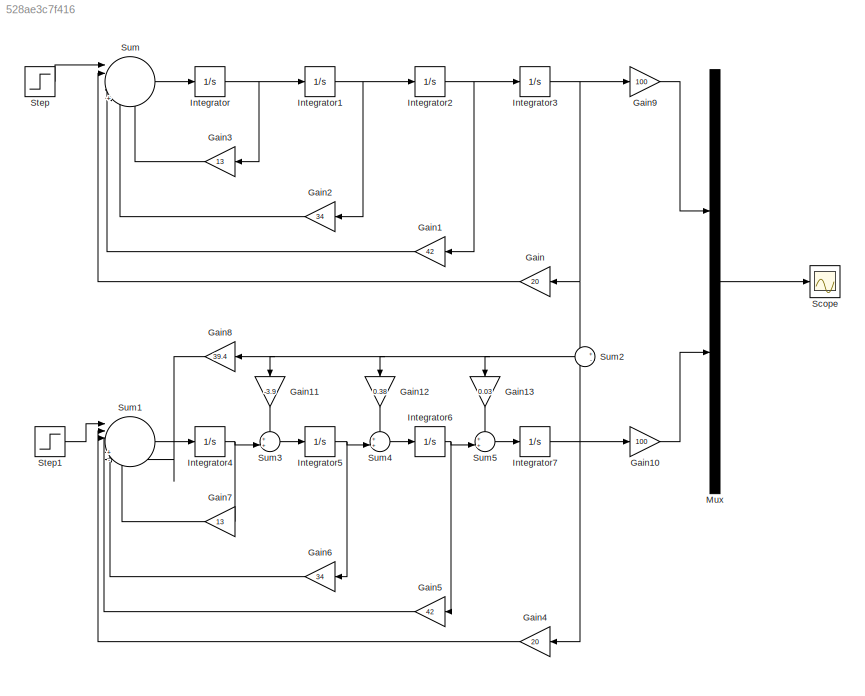
MODEL slx_528ae3c7f416
KIND model
CONFIG AbsTol = auto
CONFIG EnableMultiTasking = off
CONFIG FixedStep = auto
CONFIG MaxStep = auto
CONFIG MinStep = auto
CONFIG RelTol = 1e-3
CONFIG SampleTimeConstraint = Unconstrained
CONFIG Solver = VariableStepAuto
CONFIG SolverName = VariableStepAuto
CONFIG StartTime = 0.0
CONFIG StopTime = 20.0
BLOCK [Gain] Gain
  Gain = 20
  OutDataTypeStr = Inherit: Inherit via internal rule
  ParamDataTypeStr = Inherit: Inherit via internal rule
  SaturateOnIntegerOverflow = off
BLOCK [Gain] Gain1
  Gain = 42
  OutDataTypeStr = Inherit: Inherit via internal rule
  ParamDataTypeStr = Inherit: Inherit via internal rule
  SaturateOnIntegerOverflow = off
BLOCK [Gain] Gain10
  Gain = 100
  OutDataTypeStr = Inherit: Inherit via internal rule
  ParamDataTypeStr = Inherit: Inherit via internal rule
  SaturateOnIntegerOverflow = off
BLOCK [Gain] Gain11
  Gain = -3.9
  OutDataTypeStr = Inherit: Inherit via internal rule
  ParamDataTypeStr = Inherit: Inherit via internal rule
  SaturateOnIntegerOverflow = off
BLOCK [Gain] Gain12
  Gain = 0.38
  OutDataTypeStr = Inherit: Inherit via internal rule
  ParamDataTypeStr = Inherit: Inherit via internal rule
  SaturateOnIntegerOverflow = off
BLOCK [Gain] Gain13
  Gain = 0.03
  OutDataTypeStr = Inherit: Inherit via internal rule
  ParamDataTypeStr = Inherit: Inherit via internal rule
  SaturateOnIntegerOverflow = off
BLOCK [Gain] Gain2
  Gain = 34
  OutDataTypeStr = Inherit: Inherit via internal rule
  ParamDataTypeStr = Inherit: Inherit via internal rule
  SaturateOnIntegerOverflow = off
BLOCK [Gain] Gain3
  Gain = 13
  OutDataTypeStr = Inherit: Inherit via internal rule
  ParamDataTypeStr = Inherit: Inherit via internal rule
  SaturateOnIntegerOverflow = off
BLOCK [Gain] Gain4
  Gain = 20
  OutDataTypeStr = Inherit: Inherit via internal rule
  ParamDataTypeStr = Inherit: Inherit via internal rule
  SaturateOnIntegerOverflow = off
BLOCK [Gain] Gain5
  Gain = 42
  OutDataTypeStr = Inherit: Inherit via internal rule
  ParamDataTypeStr = Inherit: Inherit via internal rule
  SaturateOnIntegerOverflow = off
BLOCK [Gain] Gain6
  Gain = 34
  OutDataTypeStr = Inherit: Inherit via internal rule
  ParamDataTypeStr = Inherit: Inherit via internal rule
  SaturateOnIntegerOverflow = off
BLOCK [Gain] Gain7
  Gain = 13
  OutDataTypeStr = Inherit: Inherit via internal rule
  ParamDataTypeStr = Inherit: Inherit via internal rule
  SaturateOnIntegerOverflow = off
BLOCK [Gain] Gain8
  Gain = 39.4
  OutDataTypeStr = Inherit: Inherit via internal rule
  ParamDataTypeStr = Inherit: Inherit via internal rule
  SaturateOnIntegerOverflow = off
BLOCK [Gain] Gain9
  Gain = 100
  OutDataTypeStr = Inherit: Inherit via internal rule
  ParamDataTypeStr = Inherit: Inherit via internal rule
  SaturateOnIntegerOverflow = off
BLOCK [Integrator] Integrator
  Ports = [1, 1]
BLOCK [Integrator] Integrator1
  Ports = [1, 1]
BLOCK [Integrator] Integrator2
  Ports = [1, 1]
BLOCK [Integrator] Integrator3
  Ports = [1, 1]
BLOCK [Integrator] Integrator4
  Ports = [1, 1]
BLOCK [Integrator] Integrator5
  Ports = [1, 1]
BLOCK [Integrator] Integrator6
  Ports = [1, 1]
BLOCK [Integrator] Integrator7
  Ports = [1, 1]
BLOCK [Mux] Mux
  DisplayOption = bar
  Inputs = 2
  Ports = [2, 1]
BLOCK [Scope] Scope
  NumInputPorts = 1
  Ports = [1]
  ScopeSpecificationString = Simulink.scopes.TimeScopeBlockCfg('CurrentConfiguration', extmgr.ConfigurationSet(extmgr.Configuration('Core','General UI',true),extmgr.Configuration('Core','Source UI',true),extmgr.Configuration('Sources','WiredSimulink',true),extmgr.Configuration('Visuals','Time Domain',true,'SerializedDisplays',{struct('MinYLimReal','-0.62935','MaxYLimReal','5.66413','YLabelReal','','MinYLimMag','0.00000','MaxY...<+1493ch>
BLOCK [Step] Step
  SampleTime = 0
  Time = 0
BLOCK [Step] Step1
  SampleTime = 0
  Time = 8
BLOCK [Sum] Sum
  IconShape = round
  InputSameDT = off
  Inputs = ||||+----
  OutDataTypeStr = Inherit: Inherit via internal rule
  Ports = [5, 1]
  SaturateOnIntegerOverflow = off
BLOCK [Sum] Sum1
  IconShape = round
  InputSameDT = off
  Inputs = ||||+----+
  OutDataTypeStr = Inherit: Inherit via internal rule
  Ports = [6, 1]
  SaturateOnIntegerOverflow = off
BLOCK [Sum] Sum2
  IconShape = round
  InputSameDT = off
  Inputs = +-
  OutDataTypeStr = Inherit: Inherit via internal rule
  Ports = [2, 1]
  SaturateOnIntegerOverflow = off
BLOCK [Sum] Sum3
  IconShape = round
  InputSameDT = off
  Inputs = ++|
  OutDataTypeStr = Inherit: Inherit via internal rule
  Ports = [2, 1]
  SaturateOnIntegerOverflow = off
BLOCK [Sum] Sum4
  IconShape = round
  InputSameDT = off
  Inputs = ++|
  OutDataTypeStr = Inherit: Inherit via internal rule
  Ports = [2, 1]
  SaturateOnIntegerOverflow = off
BLOCK [Sum] Sum5
  IconShape = round
  InputSameDT = off
  Inputs = ++|
  OutDataTypeStr = Inherit: Inherit via internal rule
  Ports = [2, 1]
  SaturateOnIntegerOverflow = off
LINE Gain10:1 -> Mux:2
LINE Gain11:1 -> Sum3:1
LINE Gain12:1 -> Sum4:1
LINE Gain13:1 -> Sum5:1
LINE Gain1:1 -> Sum:3
LINE Gain2:1 -> Sum:4
LINE Gain3:1 -> Sum:5
LINE Gain4:1 -> Sum1:2
LINE Gain5:1 -> Sum1:3
LINE Gain6:1 -> Sum1:4
LINE Gain7:1 -> Sum1:5
LINE Gain8:1 -> Sum1:6
LINE Gain9:1 -> Mux:1
LINE Gain:1 -> Sum:2
NET Integrator1:1 -> Gain2:1, Integrator2:1
NET Integrator2:1 -> Gain1:1, Integrator3:1
NET Integrator3:1 -> Gain9:1, Gain:1, Sum2:1
NET Integrator4:1 -> Gain7:1, Sum3:2
NET Integrator5:1 -> Gain6:1, Sum4:2
NET Integrator6:1 -> Gain5:1, Sum5:2
NET Integrator7:1 -> Gain10:1, Gain4:1, Sum2:2
NET Integrator:1 -> Gain3:1, Integrator1:1
LINE Mux:1 -> Scope:1
LINE Step1:1 -> Sum1:1
LINE Step:1 -> Sum:1
LINE Sum1:1 -> Integrator4:1
NET Sum2:1 -> Gain11:1, Gain12:1, Gain13:1, Gain8:1
LINE Sum3:1 -> Integrator5:1
LINE Sum4:1 -> Integrator6:1
LINE Sum5:1 -> Integrator7:1
LINE Sum:1 -> Integrator:1
note: NET lines group one-source signal fan-out (src -> all destinations, sorted); 1:1 wires keep LINE
